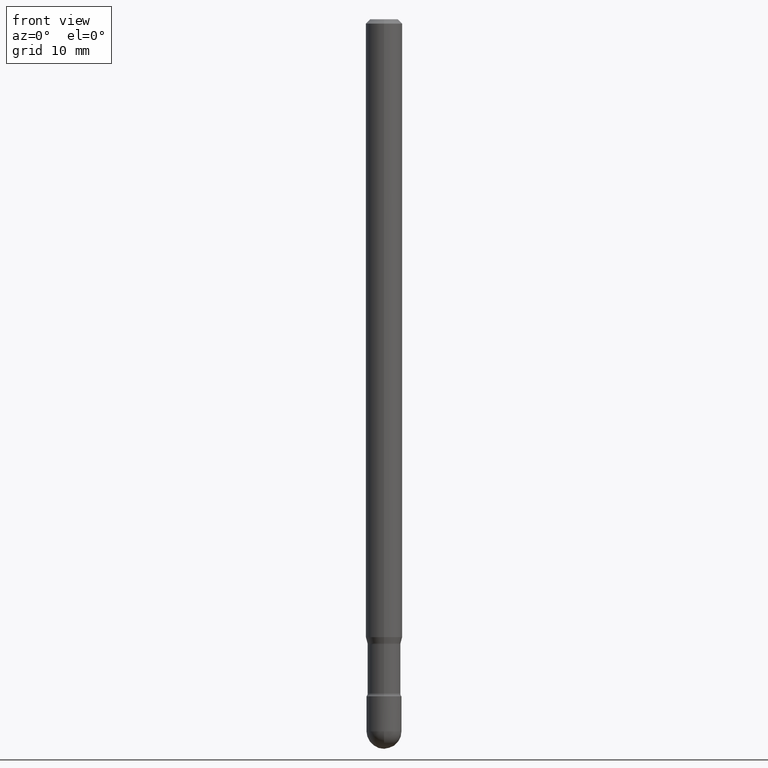
[diagram: clean part render]
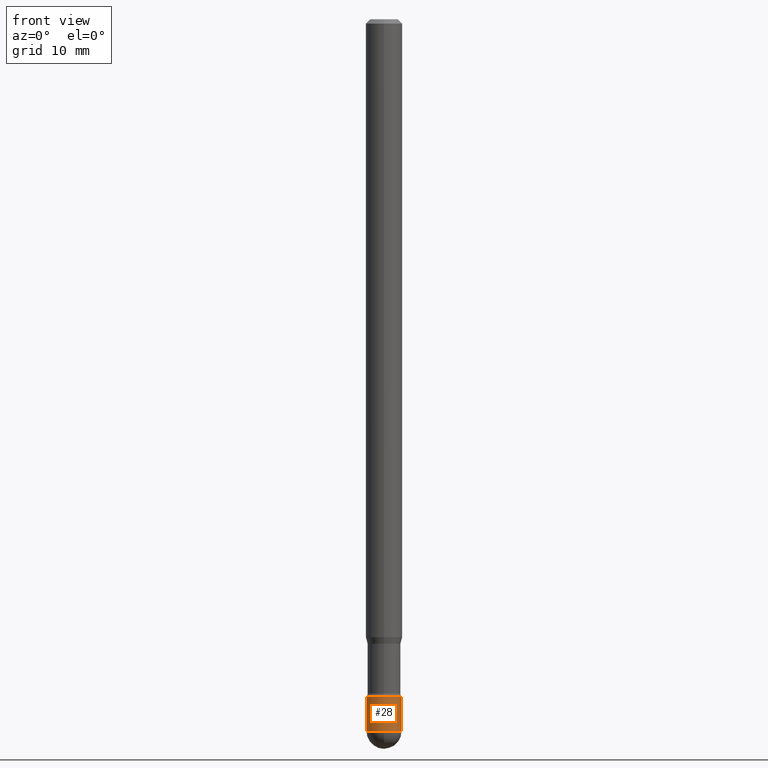
[diagram: same view with one face highlighted and labeled with its STEP entity id]
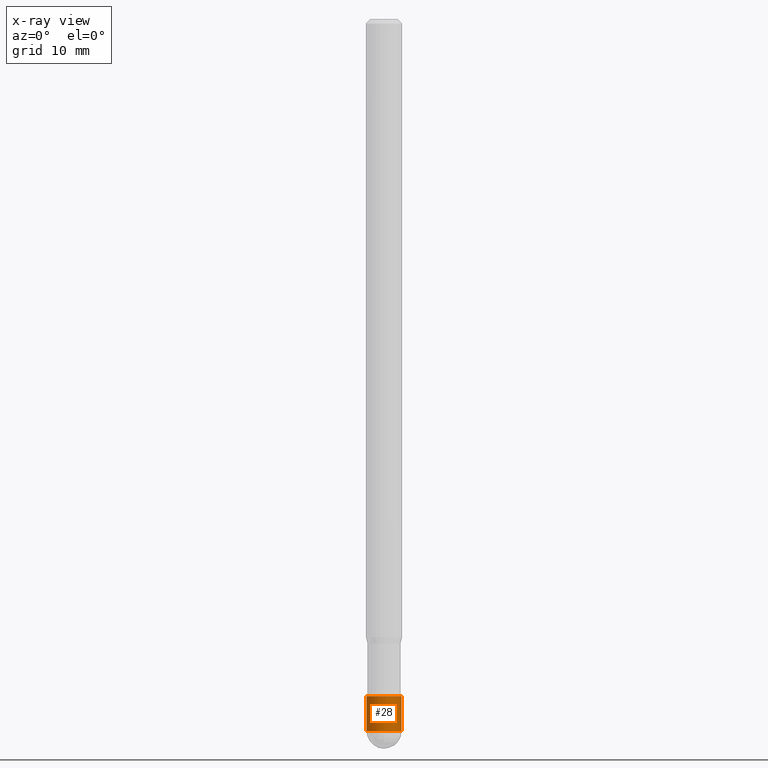
[diagram: x-ray of the same camera — body ghosted, the highlighted face saturated]
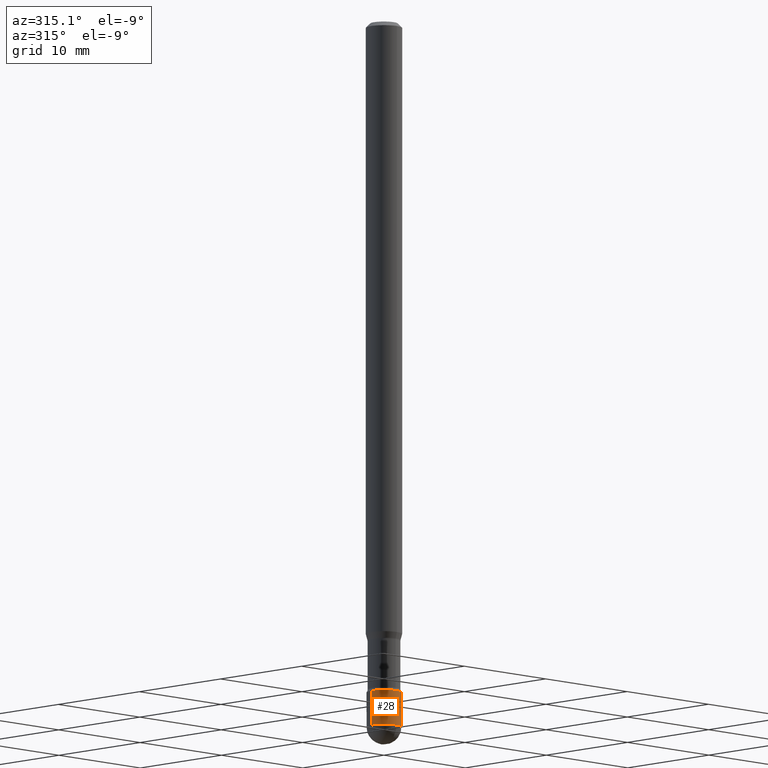
[diagram: same view with one face highlighted and labeled with its STEP entity id]
A machine part, front view. The second image highlights one B-rep face of the part: STEP entity #28.
The next image is the same camera in x-ray: the body ghosted, the highlighted face saturated — about 0% of this face is hidden behind the body in this view.
A second angle (auxiliary view) of the same face is appended — the face is thin or edge-on in the first view.
In plain terms, the highlighted cylindrical surface (edge-blend (fillet) strip) has radius 1.524 mm, axis along (-0, 0, 1).
Its self-contained STEP definition (entity closure, byte-faithful):
#4 = CARTESIAN_POINT ( 'NONE',  ( 0.000000000000000000, 0.000000000000000000, 0.000000000000000000 ) ) ;
#6 = CARTESIAN_POINT ( 'NONE',  ( -0.05999999999999999084, -7.883399944990626241E-15, -2.440000000000000391 ) ) ;
#8 = CARTESIAN_POINT ( 'NONE',  ( 0.05999999999999999084, -8.728703347107863365E-15, -2.440000000000000391 ) ) ;
#25 = DIRECTION ( 'NONE',  ( -2.445468806185136877E-29, 3.491481338843145188E-15, 1.000000000000000000 ) ) ;
#28 = ADVANCED_FACE ( 'NONE', ( #539 ), #144, .T. ) ;
#33 = LINE ( 'NONE', #430, #163 ) ;
#48 = VERTEX_POINT ( 'NONE', #565 ) ;
#49 = DIRECTION ( 'NONE',  ( -2.445468806185136597E-29, 3.491481338843145583E-15, 1.000000000000000000 ) ) ;
#69 = EDGE_CURVE ( 'NONE', #48, #148, #417, .T. ) ;
#76 = VERTEX_POINT ( 'NONE', #6 ) ;
#136 = CARTESIAN_POINT ( 'NONE',  ( -0.05999999999999999084, 4.263256414560600464E-16, -2.951361054152942712E-30 ) ) ;
#144 = CYLINDRICAL_SURFACE ( 'NONE', #483, 0.05999999999999999084 ) ;
#148 = VERTEX_POINT ( 'NONE', #451 ) ;
#163 = VECTOR ( 'NONE', #519, 39.37007874015748143 ) ;
#182 = VECTOR ( 'NONE', #25, 39.37007874015748143 ) ;
#184 = DIRECTION ( 'NONE',  ( -2.445468806185136597E-29, 3.491481338843145583E-15, 1.000000000000000000 ) ) ;
#192 = CIRCLE ( 'NONE', #233, 0.05999999999999999084 ) ;
#202 = DIRECTION ( 'NONE',  ( 1.000000000000000000, -6.982962677686269077E-15, 0.000000000000000000 ) ) ;
#208 = EDGE_CURVE ( 'NONE', #443, #232, #293, .T. ) ;
#232 = VERTEX_POINT ( 'NONE', #8 ) ;
#233 = AXIS2_PLACEMENT_3D ( 'NONE', #528, #321, #489 ) ;
#243 = EDGE_CURVE ( 'NONE', #76, #48, #403, .T. ) ;
#293 = CIRCLE ( 'NONE', #361, 0.05999999999999999084 ) ;
#318 = ORIENTED_EDGE ( 'NONE', *, *, #208, .T. ) ;
#321 = DIRECTION ( 'NONE',  ( -2.445468806185136597E-29, 3.491481338843145583E-15, 1.000000000000000000 ) ) ;
#328 = ORIENTED_EDGE ( 'NONE', *, *, #502, .T. ) ;
#346 = ORIENTED_EDGE ( 'NONE', *, *, #243, .F. ) ;
#351 = EDGE_CURVE ( 'NONE', #232, #148, #33, .T. ) ;
#361 = AXIS2_PLACEMENT_3D ( 'NONE', #467, #184, #202 ) ;
#397 = CARTESIAN_POINT ( 'NONE',  ( 5.673487630349517039E-29, -8.100236706116098414E-15, -2.320000000000000284 ) ) ;
#403 = LINE ( 'NONE', #136, #182 ) ;
#404 = DIRECTION ( 'NONE',  ( 1.000000000000000000, -6.982962677686266711E-15, 4.876176775795935793E-29 ) ) ;
#410 = ORIENTED_EDGE ( 'NONE', *, *, #69, .F. ) ;
#417 = CIRCLE ( 'NONE', #463, 0.05999999999999999778 ) ;
#430 = CARTESIAN_POINT ( 'NONE',  ( 0.05999999999999999084, -4.189777606611759435E-16, 2.925706065477561055E-30 ) ) ;
#441 = DIRECTION ( 'NONE',  ( -2.445468806185136597E-29, 3.491481338843145583E-15, 1.000000000000000000 ) ) ;
#443 = VERTEX_POINT ( 'NONE', #448 ) ;
#448 = CARTESIAN_POINT ( 'NONE',  ( -4.263256414560001423E-16, -0.06000000000000849792, -2.439999999999999947 ) ) ;
#451 = CARTESIAN_POINT ( 'NONE',  ( 0.05999999999999999778, -8.519214466777275048E-15, -2.320000000000000284 ) ) ;
#463 = AXIS2_PLACEMENT_3D ( 'NONE', #397, #441, #488 ) ;
#467 = CARTESIAN_POINT ( 'NONE',  ( 5.966943887091733341E-29, -8.519214466777275048E-15, -2.440000000000000391 ) ) ;
#471 = ORIENTED_EDGE ( 'NONE', *, *, #351, .T. ) ;
#483 = AXIS2_PLACEMENT_3D ( 'NONE', #4, #49, #404 ) ;
#488 = DIRECTION ( 'NONE',  ( 1.000000000000000000, -6.982962677686268288E-15, 0.000000000000000000 ) ) ;
#489 = DIRECTION ( 'NONE',  ( 1.000000000000000000, -6.982962677686269077E-15, 0.000000000000000000 ) ) ;
#496 = EDGE_LOOP ( 'NONE', ( #346, #328, #318, #471, #410 ) ) ;
#502 = EDGE_CURVE ( 'NONE', #76, #443, #192, .T. ) ;
#519 = DIRECTION ( 'NONE',  ( -2.445468806185136877E-29, 3.491481338843145188E-15, 1.000000000000000000 ) ) ;
#528 = CARTESIAN_POINT ( 'NONE',  ( 5.966943887091733341E-29, -8.519214466777275048E-15, -2.440000000000000391 ) ) ;
#539 = FACE_OUTER_BOUND ( 'NONE', #496, .T. ) ;
#565 = CARTESIAN_POINT ( 'NONE',  ( -0.06000000000000001166, -7.883399944990626241E-15, -2.320000000000000284 ) ) ;